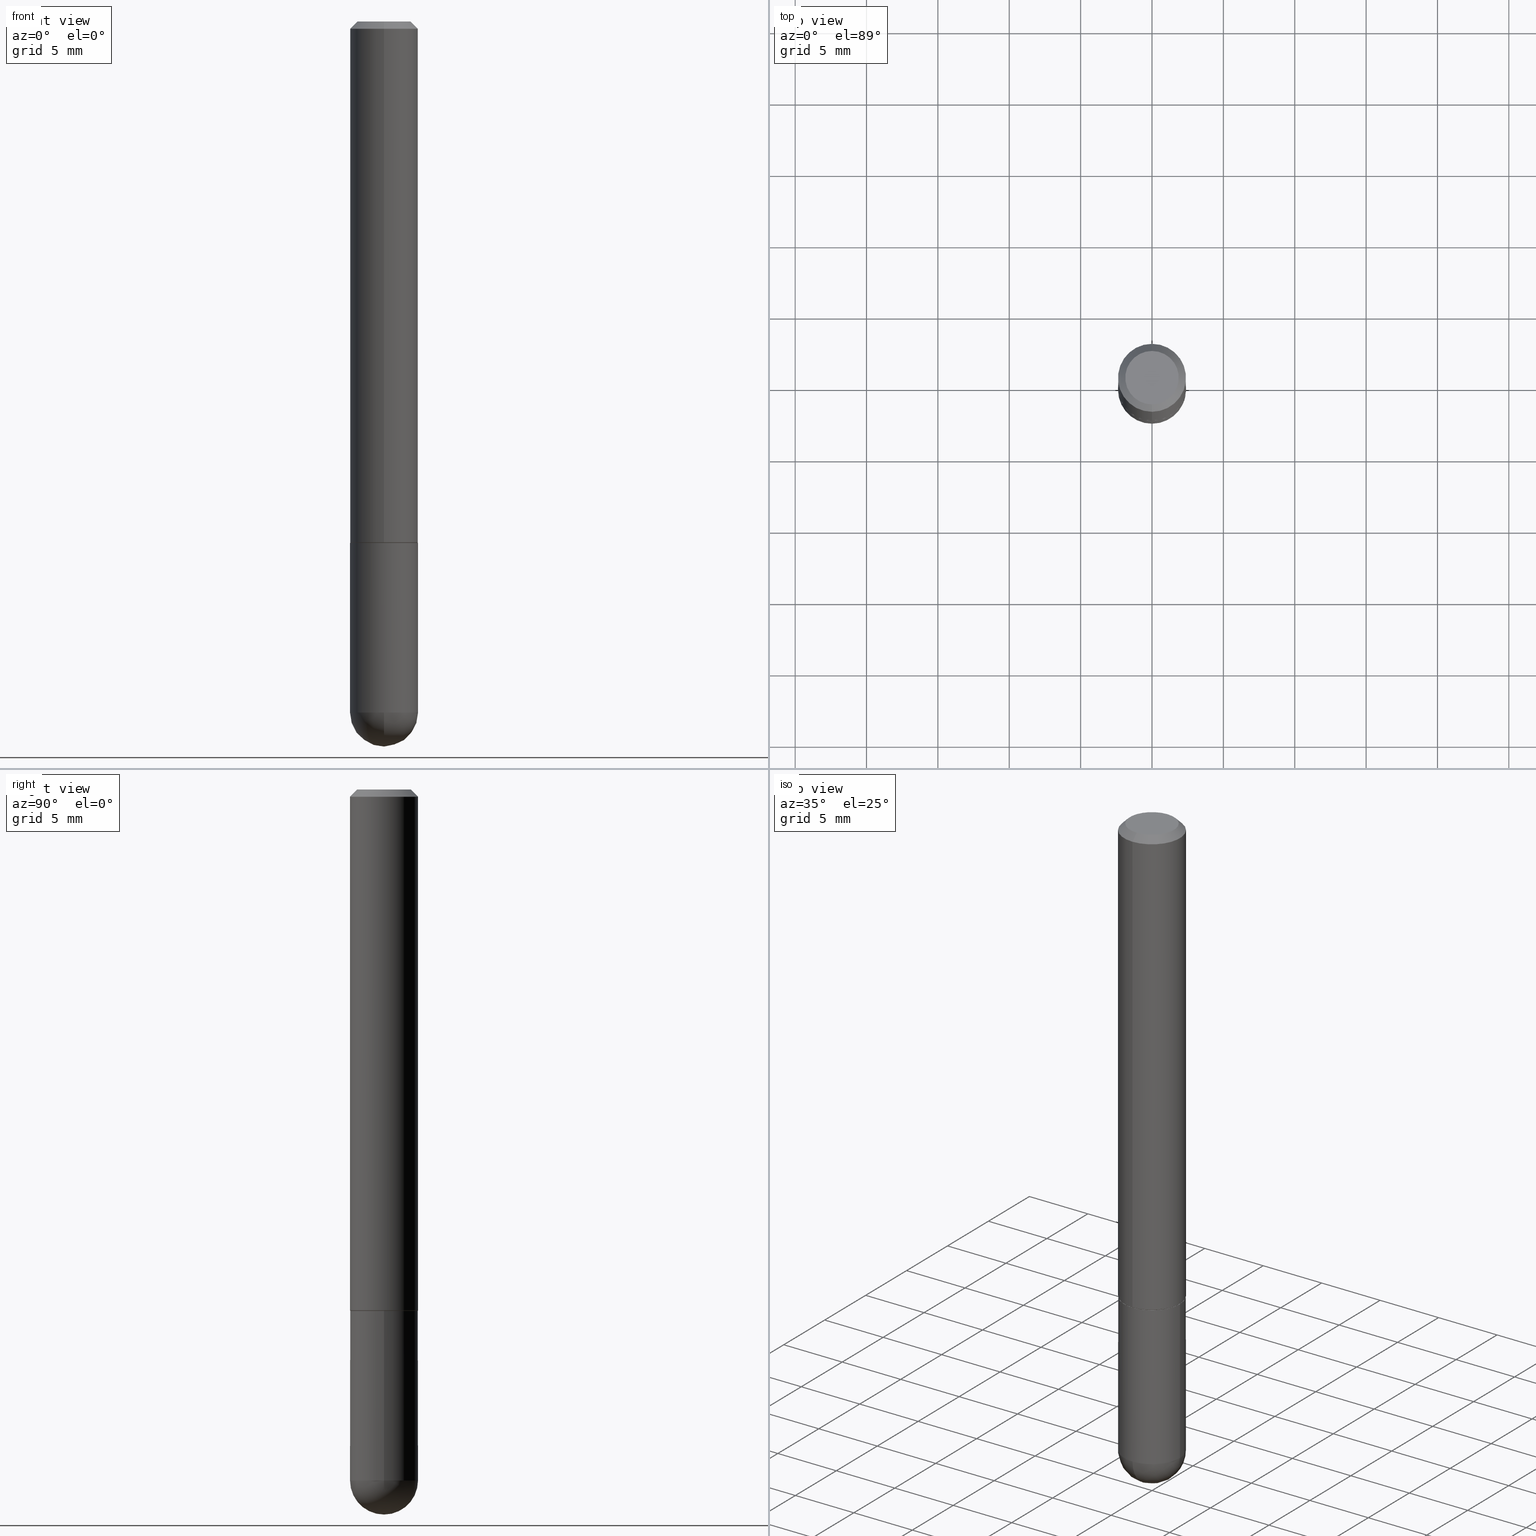
[diagram: canonical four-view strip — front | top / right | iso, engineering-drawing reading convention]
A machine part, canonical four-view strip (front | top / right | iso — engineering-drawing reading convention). The complete STEP part file that produces these views, byte-faithful:
ISO-10303-21;
HEADER;
FILE_DESCRIPTION (( 'STEP AP203' ),
    '1' );
FILE_NAME ('34631.STEP',
    '2024-02-21T18:10:36',
    ( '' ),
    ( '' ),
    'SwSTEP 2.0',
    'SolidWorks 2023',
    '' );
FILE_SCHEMA (( 'CONFIG_CONTROL_DESIGN' ));
ENDSEC;

DATA;
#1 = DIRECTION ( 'NONE',  ( -2.446041994382864894E-29, 3.490660500720152417E-15, 1.000000000000000000 ) ) ;
#2 = EDGE_CURVE ( 'NONE', #334, #113, #152, .T. ) ;
#3 = FACE_OUTER_BOUND ( 'NONE', #370, .T. ) ;
#4 = APPROVAL ( #167, 'UNSPECIFIED' ) ;
#5 = FACE_OUTER_BOUND ( 'NONE', #193, .T. ) ;
#6 = DATE_AND_TIME ( #138, #405 ) ;
#7 = CONICAL_SURFACE ( 'NONE', #273, 0.09274999999999999911, 0.7853981633976446775 ) ;
#8 = ORIENTED_EDGE ( 'NONE', *, *, #400, .T. ) ;
#9 = EDGE_CURVE ( 'NONE', #236, #334, #296, .T. ) ;
#10 = ORIENTED_EDGE ( 'NONE', *, *, #400, .F. ) ;
#11 = CARTESIAN_POINT ( 'NONE',  ( 6.661338147751125611E-16, 0.09374999999999515665, -1.437000000000000277 ) ) ;
#12 = DESIGN_CONTEXT ( 'detailed design', #61, 'design' ) ;
#13 = AXIS2_PLACEMENT_3D ( 'NONE', #44, #72, #200 ) ;
#14 = ORIENTED_EDGE ( 'NONE', *, *, #356, .F. ) ;
#15 = LENGTH_MEASURE_WITH_UNIT ( LENGTH_MEASURE( 0.02539999999999999897 ), #403 );
#16 = CARTESIAN_POINT ( 'NONE',  ( -6.661338147750496494E-16, -0.09375000000000702216, -1.906249999999999556 ) ) ;
#17 = ORIENTED_EDGE ( 'NONE', *, *, #231, .T. ) ;
#18 = ADVANCED_FACE ( 'NONE', ( #5 ), #230, .F. ) ;
#19 = AXIS2_PLACEMENT_3D ( 'NONE', #250, #1, #191 ) ;
#20 = ORIENTED_EDGE ( 'NONE', *, *, #249, .T. ) ;
#21 = DIRECTION ( 'NONE',  ( -2.445468806185136597E-29, 3.491481338843145583E-15, 1.000000000000000000 ) ) ;
#22 = CC_DESIGN_PERSON_AND_ORGANIZATION_ASSIGNMENT ( #156, #68, ( #203 ) ) ;
#23 = ORIENTED_EDGE ( 'NONE', *, *, #174, .T. ) ;
#24 = APPLICATION_CONTEXT ( 'configuration controlled 3d designs of mechanical parts and assemblies' ) ;
#25 = DATE_TIME_ROLE ( 'creation_date' ) ;
#26 = VERTEX_POINT ( 'NONE', #41 ) ;
#27 = DIRECTION ( 'NONE',  ( -2.446041994382864894E-29, 3.490660500720152022E-15, 1.000000000000000000 ) ) ;
#28 = AXIS2_PLACEMENT_3D ( 'NONE', #219, #311, #62 ) ;
#29 = DATE_AND_TIME ( #409, #51 ) ;
#30 = EDGE_CURVE ( 'NONE', #185, #366, #121, .T. ) ;
#31 = CARTESIAN_POINT ( 'NONE',  ( -0.09375000000000001388, -5.172059418938000719E-15, -1.437999999999999723 ) ) ;
#32 = PERSON_AND_ORGANIZATION_ROLE ( 'creator' ) ;
#33 = SPHERICAL_SURFACE ( 'NONE', #75, 0.09375000000000026368 ) ;
#34 = ORIENTED_EDGE ( 'NONE', *, *, #206, .T. ) ;
#35 = APPROVAL_STATUS ( 'not_yet_approved' ) ;
#36 = DIRECTION ( 'NONE',  ( -2.445468806185136597E-29, 3.491481338843145583E-15, 1.000000000000000000 ) ) ;
#37 = VECTOR ( 'NONE', #27, 39.37007874015748143 ) ;
#38 = DIRECTION ( 'NONE',  ( -2.446041994382864894E-29, 3.490660500720152417E-15, 1.000000000000000000 ) ) ;
#39 = DIRECTION ( 'NONE',  ( -4.937700262165517552E-15, -0.7071067811866839081, 0.7071067811864111263 ) ) ;
#40 = DIRECTION ( 'NONE',  ( 6.982962677686265133E-15, 1.000000000000000000, -2.913971193241872483E-15 ) ) ;
#41 = CARTESIAN_POINT ( 'NONE',  ( 5.848231242562252906E-16, 0.07375000000000007938, -3.087188986208872011E-16 ) ) ;
#42 = AXIS2_PLACEMENT_3D ( 'NONE', #281, #314, #124 ) ;
#43 = FACE_OUTER_BOUND ( 'NONE', #178, .T. ) ;
#44 = CARTESIAN_POINT ( 'NONE',  ( 5.149934974793626827E-16, 0.07375000000000007938, -2.830775552744993900E-16 ) ) ;
#45 = PERSON_AND_ORGANIZATION ( #98, #131 ) ;
#46 = AXIS2_PLACEMENT_3D ( 'NONE', #80, #21, #84 ) ;
#47 = CYLINDRICAL_SURFACE ( 'NONE', #368, 0.09375000000000009714 ) ;
#48 = DIRECTION ( 'NONE',  ( 1.000000000000000000, -6.982962677686265922E-15, 4.883557194083112340E-29 ) ) ;
#49 = ADVANCED_FACE ( 'NONE', ( #3 ), #322, .T. ) ;
#50 = EDGE_LOOP ( 'NONE', ( #139, #8 ) ) ;
#51 = LOCAL_TIME ( 13, 10, 36.00000000000000000, #383 ) ;
#52 = DIRECTION ( 'NONE',  ( -2.446041994382864894E-29, 3.490660500720152417E-15, 1.000000000000000000 ) ) ;
#53 = ORIENTED_EDGE ( 'NONE', *, *, #168, .F. ) ;
#54 = CARTESIAN_POINT ( 'NONE',  ( 3.517408387922559130E-29, -5.019569800035578091E-15, -1.437999999999999723 ) ) ;
#55 = EDGE_CURVE ( 'NONE', #118, #215, #142, .T. ) ;
#56 = DIRECTION ( 'NONE',  ( -6.982962677686265922E-15, -1.000000000000000000, 2.945388672414299892E-15 ) ) ;
#57 = AXIS2_PLACEMENT_3D ( 'NONE', #317, #36, #161 ) ;
#58 = CARTESIAN_POINT ( 'NONE',  ( 4.563826426436916486E-29, -7.451404513955337857E-15, -2.000000000000000444 ) ) ;
#59 = DIRECTION ( 'NONE',  ( -6.982962677686265922E-15, -1.000000000000000000, 3.490660500720152811E-15 ) ) ;
#60 = CARTESIAN_POINT ( 'NONE',  ( 6.625811010963292147E-16, 0.09274999999999498923, -1.438000000000000167 ) ) ;
#61 = APPLICATION_CONTEXT ( 'configuration controlled 3d designs of mechanical parts and assemblies' ) ;
#62 = DIRECTION ( 'NONE',  ( -6.982962677686265922E-15, -1.000000000000000000, 3.490660500720152417E-15 ) ) ;
#63 = APPROVAL_PERSON_ORGANIZATION ( #235, #4, #134 ) ;
#64 = FACE_OUTER_BOUND ( 'NONE', #50, .T. ) ;
#65 = AXIS2_PLACEMENT_3D ( 'NONE', #181, #331, #339 ) ;
#66 = CC_DESIGN_PERSON_AND_ORGANIZATION_ASSIGNMENT ( #218, #310, ( #203 ) ) ;
#67 = DIRECTION ( 'NONE',  ( -6.982962677686265922E-15, -1.000000000000000000, 2.945388672414299892E-15 ) ) ;
#68 = PERSON_AND_ORGANIZATION_ROLE ( 'design_supplier' ) ;
#69 = CARTESIAN_POINT ( 'NONE',  ( 3.517408387922559130E-29, -5.019569800035578091E-15, -1.437999999999999723 ) ) ;
#70 = VECTOR ( 'NONE', #87, 39.37007874015748143 ) ;
#71 = CARTESIAN_POINT ( 'NONE',  ( 4.892083988765733782E-31, -6.981321001440310454E-17, -0.02000000000000001776 ) ) ;
#72 = DIRECTION ( 'NONE',  ( 2.446041994382864894E-29, -3.490660500720152022E-15, -1.000000000000000000 ) ) ;
#73 = COORDINATED_UNIVERSAL_TIME_OFFSET ( 5, 0, .BEHIND. ) ;
#74 = DIRECTION ( 'NONE',  ( -6.982962677686265922E-15, -1.000000000000000000, 2.945388672414299892E-15 ) ) ;
#75 = AXIS2_PLACEMENT_3D ( 'NONE', #159, #282, #345 ) ;
#76 = ADVANCED_FACE ( 'NONE', ( #257 ), #135, .T. ) ;
#77 = ORIENTED_EDGE ( 'NONE', *, *, #237, .T. ) ;
#78 = DIRECTION ( 'NONE',  ( -2.446041994382864894E-29, 3.490660500720152417E-15, 1.000000000000000000 ) ) ;
#79 = EDGE_LOOP ( 'NONE', ( #212, #302 ) ) ;
#80 = CARTESIAN_POINT ( 'NONE',  ( 0.000000000000000000, 0.000000000000000000, 0.000000000000000000 ) ) ;
#81 = FACE_OUTER_BOUND ( 'NONE', #391, .T. ) ;
#82 = CC_DESIGN_DATE_AND_TIME_ASSIGNMENT ( #6, #325, ( #172 ) ) ;
#83 = ORIENTED_EDGE ( 'NONE', *, *, #312, .T. ) ;
#84 = DIRECTION ( 'NONE',  ( 1.000000000000000000, -6.982962677686266711E-15, 4.876176775795935793E-29 ) ) ;
#85 = CARTESIAN_POINT ( 'NONE',  ( 3.516584143294225538E-29, -5.020750165256442268E-15, -1.437999999999999723 ) ) ;
#86 = VECTOR ( 'NONE', #378, 39.37007874015748143 ) ;
#87 = DIRECTION ( 'NONE',  ( -2.445468806185136877E-29, 3.491481338843145188E-15, 1.000000000000000000 ) ) ;
#88 = ADVANCED_FACE ( 'NONE', ( #333 ), #47, .T. ) ;
#89 = DIRECTION ( 'NONE',  ( -6.982962677686265922E-15, -1.000000000000000000, 3.505871591869137304E-15 ) ) ;
#90 = AXIS2_PLACEMENT_3D ( 'NONE', #129, #327, #74 ) ;
#91 = SECURITY_CLASSIFICATION_LEVEL ( 'unclassified' ) ;
#92 = APPROVAL_DATE_TIME ( #377, #298 ) ;
#93 = LINE ( 'NONE', #256, #213 ) ;
#94 = CARTESIAN_POINT ( 'NONE',  ( -6.476697883553659911E-16, -0.09275000000000502287, -1.437999999999999501 ) ) ;
#95 = AXIS2_PLACEMENT_3D ( 'NONE', #85, #148, #299 ) ;
#96 = EDGE_CURVE ( 'NONE', #113, #207, #192, .T. ) ;
#97 = DIRECTION ( 'NONE',  ( -2.446041994382864894E-29, 3.490660500720152022E-15, 1.000000000000000000 ) ) ;
#98 = PERSON ( 'UNSPECIFIED', 'UNSPECIFIED', 'UNSPECIFIED', ('UNSPECIFIED'), ('UNSPECIFIED'), ('UNSPECIFIED') ) ;
#99 = PERSON_AND_ORGANIZATION ( #98, #131 ) ;
#100 = SHAPE_DEFINITION_REPRESENTATION ( #337, #194 ) ;
#101 = DIRECTION ( 'NONE',  ( 2.446041994382864894E-29, -3.490660500720152417E-15, -1.000000000000000000 ) ) ;
#102 = AXIS2_PLACEMENT_3D ( 'NONE', #214, #78, #267 ) ;
#103 = EDGE_CURVE ( 'NONE', #108, #185, #170, .T. ) ;
#104 = FACE_OUTER_BOUND ( 'NONE', #79, .T. ) ;
#105 = APPROVAL_PERSON_ORGANIZATION ( #122, #298, #160 ) ;
#106 = CARTESIAN_POINT ( 'NONE',  ( 0.09374999999999998612, -6.492845984746181359E-15, -1.906250000000000000 ) ) ;
#107 = MANIFOLD_SOLID_BREP ( 'Body-Move/Copy2[2]', #388 ) ;
#108 = VERTEX_POINT ( 'NONE', #58 ) ;
#109 = ORIENTED_EDGE ( 'NONE', *, *, #137, .F. ) ;
#110 = EDGE_LOOP ( 'NONE', ( #297, #242, #402, #372 ) ) ;
#111 = CARTESIAN_POINT ( 'NONE',  ( -0.09374999999999998612, -5.172059418938000719E-15, -1.906250000000000000 ) ) ;
#112 = AXIS2_PLACEMENT_3D ( 'NONE', #144, #146, #208 ) ;
#113 = VERTEX_POINT ( 'NONE', #11 ) ;
#114 = CARTESIAN_POINT ( 'NONE',  ( -0.09374999999999998612, 6.661338147750938256E-16, -4.611501647113973295E-30 ) ) ;
#115 = ORIENTED_EDGE ( 'NONE', *, *, #312, .F. ) ;
#116 = ADVANCED_FACE ( 'NONE', ( #81 ), #7, .T. ) ;
#117 = CARTESIAN_POINT ( 'NONE',  ( -6.431716872910805909E-16, -0.09375000000000006939, -0.01999999999999968817 ) ) ;
#118 = VERTEX_POINT ( 'NONE', #306 ) ;
#119 = MECHANICAL_CONTEXT ( 'NONE', #24, 'mechanical' ) ;
#120 = DIRECTION ( 'NONE',  ( 2.446041994382864894E-29, -3.490660500720152417E-15, -1.000000000000000000 ) ) ;
#121 = CIRCLE ( 'NONE', #347, 0.09374999999999998612 ) ;
#122 = PERSON_AND_ORGANIZATION ( #98, #131 ) ;
#123 = FACE_OUTER_BOUND ( 'NONE', #295, .T. ) ;
#124 = DIRECTION ( 'NONE',  ( 1.000000000000000000, -6.982962677686263555E-15, 0.000000000000000000 ) ) ;
#125 = VECTOR ( 'NONE', #39, 39.37007874015748143 ) ;
#126 = CARTESIAN_POINT ( 'NONE',  ( 3.517408387922559130E-29, -5.019569800035578091E-15, -1.437999999999999723 ) ) ;
#127 = DIRECTION ( 'NONE',  ( -4.851104656540958753E-15, -0.7071067811865492381, -0.7071067811865457964 ) ) ;
#128 = CARTESIAN_POINT ( 'NONE',  ( 3.517408387922559130E-29, -5.019569800035578091E-15, -1.437999999999999723 ) ) ;
#129 = CARTESIAN_POINT ( 'NONE',  ( 3.517408387922559130E-29, -5.019569800035578091E-15, -1.437999999999999723 ) ) ;
#130 = ADVANCED_FACE ( 'NONE', ( #179 ), #371, .T. ) ;
#131 = ORGANIZATION ( 'UNSPECIFIED', 'UNSPECIFIED', '' ) ;
#132 = AXIS2_PLACEMENT_3D ( 'NONE', #225, #196, #286 ) ;
#133 = DIRECTION ( 'NONE',  ( -2.445468806185136597E-29, 3.491481338843145583E-15, 1.000000000000000000 ) ) ;
#134 = APPROVAL_ROLE ( '' ) ;
#135 = CONICAL_SURFACE ( 'NONE', #369, 0.09375000000000001388, 0.7853981633974472798 ) ;
#136 = DIRECTION ( 'NONE',  ( 6.982962677686265133E-15, 1.000000000000000000, 0.000000000000000000 ) ) ;
#137 = EDGE_CURVE ( 'NONE', #392, #412, #291, .T. ) ;
#138 = CALENDAR_DATE ( 2024, 21, 2 ) ;
#139 = ORIENTED_EDGE ( 'NONE', *, *, #408, .T. ) ;
#140 =( CONVERSION_BASED_UNIT ( 'INCH', #15 ) LENGTH_UNIT ( ) NAMED_UNIT ( #304 ) );
#141 = ORIENTED_EDGE ( 'NONE', *, *, #165, .T. ) ;
#142 = CIRCLE ( 'NONE', #336, 0.09375000000000001388 ) ;
#143 = DIRECTION ( 'NONE',  ( 1.000000000000000000, -6.982962677686261189E-15, 0.000000000000000000 ) ) ;
#144 = CARTESIAN_POINT ( 'NONE',  ( 4.661674911790416638E-29, -6.655636302169745441E-15, -1.906250000000000000 ) ) ;
#145 = ORIENTED_EDGE ( 'NONE', *, *, #344, .F. ) ;
#146 = DIRECTION ( 'NONE',  ( -2.445468806185136597E-29, 3.491481338843145583E-15, 1.000000000000000000 ) ) ;
#147 = ORIENTED_EDGE ( 'NONE', *, *, #2, .F. ) ;
#148 = DIRECTION ( 'NONE',  ( -2.445468806185136597E-29, 3.491481338843145583E-15, 1.000000000000000000 ) ) ;
#149 = DIRECTION ( 'NONE',  ( -2.446041994382864894E-29, 3.490660500720152417E-15, 1.000000000000000000 ) ) ;
#150 = ORIENTED_EDGE ( 'NONE', *, *, #168, .T. ) ;
#151 = COORDINATED_UNIVERSAL_TIME_OFFSET ( 5, 0, .BEHIND. ) ;
#152 = LINE ( 'NONE', #406, #265 ) ;
#153 = APPROVAL_ROLE ( '' ) ;
#154 = CC_DESIGN_SECURITY_CLASSIFICATION ( #172, ( #203 ) ) ;
#155 = CARTESIAN_POINT ( 'NONE',  ( 0.09375000000000001388, -5.675402916289529772E-15, -1.437999999999999723 ) ) ;
#156 = PERSON_AND_ORGANIZATION ( #98, #131 ) ;
#157 = DIRECTION ( 'NONE',  ( 2.438088387897960049E-29, -3.491481338843145188E-15, -1.000000000000000000 ) ) ;
#158 = CALENDAR_DATE ( 2024, 21, 2 ) ;
#159 = CARTESIAN_POINT ( 'NONE',  ( 4.330555133876530390E-29, -7.129818670309794948E-15, -1.906250000000000000 ) ) ;
#160 = APPROVAL_ROLE ( '' ) ;
#161 = DIRECTION ( 'NONE',  ( 1.000000000000000000, -6.982962677686263555E-15, 0.000000000000000000 ) ) ;
#162 = CIRCLE ( 'NONE', #95, 0.09375000000000001388 ) ;
#163 = DIRECTION ( 'NONE',  ( -6.982962677686265922E-15, -1.000000000000000000, 3.505871591869137304E-15 ) ) ;
#164 = CYLINDRICAL_SURFACE ( 'NONE', #132, 0.09374999999999998612 ) ;
#165 = EDGE_CURVE ( 'NONE', #26, #175, #349, .T. ) ;
#166 = LOCAL_TIME ( 13, 10, 36.00000000000000000, #316 ) ;
#167 = APPROVAL_STATUS ( 'not_yet_approved' ) ;
#168 = EDGE_CURVE ( 'NONE', #412, #276, #176, .T. ) ;
#169 = DIRECTION ( 'NONE',  ( -2.445468806185136597E-29, 3.491481338843145583E-15, 1.000000000000000000 ) ) ;
#170 = CIRCLE ( 'NONE', #65, 0.09375000000000026368 ) ;
#171 = ORIENTED_EDGE ( 'NONE', *, *, #344, .T. ) ;
#172 = SECURITY_CLASSIFICATION ( '', '', #91 ) ;
#173 = ORIENTED_EDGE ( 'NONE', *, *, #30, .T. ) ;
#174 = EDGE_CURVE ( 'NONE', #207, #113, #187, .T. ) ;
#175 = VERTEX_POINT ( 'NONE', #394 ) ;
#176 = LINE ( 'NONE', #114, #70 ) ;
#177 = PRODUCT_RELATED_PRODUCT_CATEGORY ( 'detail', '', ( #221 ) ) ;
#178 = EDGE_LOOP ( 'NONE', ( #14, #189, #240, #109 ) ) ;
#179 = FACE_OUTER_BOUND ( 'NONE', #238, .T. ) ;
#180 = CIRCLE ( 'NONE', #332, 0.09274999999999999911 ) ;
#181 = CARTESIAN_POINT ( 'NONE',  ( 4.330555133876530390E-29, -7.129818670309794948E-15, -1.906250000000000000 ) ) ;
#182 = ORIENTED_EDGE ( 'NONE', *, *, #408, .F. ) ;
#183 = APPROVAL_DATE_TIME ( #255, #211 ) ;
#184 = DIRECTION ( 'NONE',  ( -2.446041994382864894E-29, 3.490660500720152417E-15, 1.000000000000000000 ) ) ;
#185 = VERTEX_POINT ( 'NONE', #16 ) ;
#186 = CARTESIAN_POINT ( 'NONE',  ( 4.892083988765733782E-31, -6.981321001440310454E-17, -0.02000000000000001776 ) ) ;
#187 = CIRCLE ( 'NONE', #102, 0.09375000000000019429 ) ;
#188 = DIRECTION ( 'NONE',  ( 4.937700262164542520E-15, 0.7071067811865443531, -0.7071067811865506814 ) ) ;
#189 = ORIENTED_EDGE ( 'NONE', *, *, #103, .T. ) ;
#190 = DIRECTION ( 'NONE',  ( 1.000000000000000000, 0.000000000000000000, 0.000000000000000000 ) ) ;
#191 = DIRECTION ( 'NONE',  ( -6.982962677686265922E-15, -1.000000000000000000, 3.490660500720152811E-15 ) ) ;
#192 = CIRCLE ( 'NONE', #401, 0.09375000000000019429 ) ;
#193 = EDGE_LOOP ( 'NONE', ( #141, #204 ) ) ;
#194 = ADVANCED_BREP_SHAPE_REPRESENTATION ( '34631', ( #234, #107, #354 ), #374 ) ;
#195 = APPROVAL_STATUS ( 'not_yet_approved' ) ;
#196 = DIRECTION ( 'NONE',  ( -2.445468806185136597E-29, 3.491481338843145583E-15, 1.000000000000000000 ) ) ;
#197 = CARTESIAN_POINT ( 'NONE',  ( 6.546527510330879972E-16, 0.09374999999999994449, -0.02000000000000034736 ) ) ;
#198 = EDGE_CURVE ( 'NONE', #366, #224, #269, .T. ) ;
#199 = AXIS2_PLACEMENT_3D ( 'NONE', #258, #133, #143 ) ;
#200 = DIRECTION ( 'NONE',  ( 6.982962677686265922E-15, 1.000000000000000000, -3.490660500720152022E-15 ) ) ;
#201 = DIRECTION ( 'NONE',  ( -2.446041994382864894E-29, 3.490660500720152022E-15, 1.000000000000000000 ) ) ;
#202 = ADVANCED_FACE ( 'NONE', ( #123 ), #350, .T. ) ;
#203 = PRODUCT_DEFINITION_FORMATION_WITH_SPECIFIED_SOURCE ( 'ANY', '', #221, .NOT_KNOWN. ) ;
#204 = ORIENTED_EDGE ( 'NONE', *, *, #241, .T. ) ;
#205 = DIRECTION ( 'NONE',  ( -6.982962677686266711E-15, -1.000000000000000000, 2.913971193241874850E-15 ) ) ;
#206 = EDGE_CURVE ( 'NONE', #26, #215, #93, .T. ) ;
#207 = VERTEX_POINT ( 'NONE', #279 ) ;
#208 = DIRECTION ( 'NONE',  ( 1.000000000000000000, -6.982962677686263555E-15, 0.000000000000000000 ) ) ;
#209 = ORIENTED_EDGE ( 'NONE', *, *, #241, .F. ) ;
#210 = ORIENTED_EDGE ( 'NONE', *, *, #96, .F. ) ;
#211 = APPROVAL ( #195, 'UNSPECIFIED' ) ;
#212 = ORIENTED_EDGE ( 'NONE', *, *, #9, .F. ) ;
#213 = VECTOR ( 'NONE', #188, 39.37007874015748143 ) ;
#214 = CARTESIAN_POINT ( 'NONE',  ( 3.514962345928176845E-29, -5.016079139534859416E-15, -1.437000000000000055 ) ) ;
#215 = VERTEX_POINT ( 'NONE', #197 ) ;
#216 = CLOSED_SHELL ( 'NONE', ( #328, #393, #307, #263, #130 ) ) ;
#217 = DIRECTION ( 'NONE',  ( 6.982962677686265922E-15, 1.000000000000000000, -3.505871591869137304E-15 ) ) ;
#218 = PERSON_AND_ORGANIZATION ( #98, #131 ) ;
#219 = CARTESIAN_POINT ( 'NONE',  ( 1.254396052353086315E-45, -1.790104488092790553E-31, -5.128268669277567764E-17 ) ) ;
#220 = PRODUCT_DEFINITION ( 'UNKNOWN', '', #203, #12 ) ;
#221 = PRODUCT ( '34631', '34631', '', ( #119 ) ) ;
#222 = LOCAL_TIME ( 13, 10, 36.00000000000000000, #151 ) ;
#223 = LINE ( 'NONE', #384, #270 ) ;
#224 = VERTEX_POINT ( 'NONE', #155 ) ;
#225 = CARTESIAN_POINT ( 'NONE',  ( 0.000000000000000000, 0.000000000000000000, 0.000000000000000000 ) ) ;
#226 = PERSON_AND_ORGANIZATION_ROLE ( 'design_owner' ) ;
#227 = DIRECTION ( 'NONE',  ( -2.446041994382864894E-29, 3.490660500720152417E-15, 1.000000000000000000 ) ) ;
#228 = DIRECTION ( 'NONE',  ( -1.000000000000000000, 6.982962677686265133E-15, -4.883557194083112901E-29 ) ) ;
#229 = LOCAL_TIME ( 13, 10, 36.00000000000000000, #248 ) ;
#230 = PLANE ( 'NONE',  #13 ) ;
#231 = EDGE_CURVE ( 'NONE', #334, #236, #180, .T. ) ;
#232 = CARTESIAN_POINT ( 'NONE',  ( 6.546527510331332580E-16, 0.09374999999999322764, -1.906250000000000222 ) ) ;
#233 = CONICAL_SURFACE ( 'NONE', #319, 0.09375000000000001388, 0.7853981633974472798 ) ;
#234 = MANIFOLD_SOLID_BREP ( 'Body-Move/Copy2[1]', #216 ) ;
#235 = PERSON_AND_ORGANIZATION ( #98, #131 ) ;
#236 = VERTEX_POINT ( 'NONE', #94 ) ;
#237 = EDGE_CURVE ( 'NONE', #113, #215, #386, .T. ) ;
#238 = EDGE_LOOP ( 'NONE', ( #53, #300, #173, #284, #10 ) ) ;
#239 = APPROVAL_PERSON_ORGANIZATION ( #385, #211, #153 ) ;
#240 = ORIENTED_EDGE ( 'NONE', *, *, #341, .F. ) ;
#241 = EDGE_CURVE ( 'NONE', #175, #26, #390, .T. ) ;
#242 = ORIENTED_EDGE ( 'NONE', *, *, #356, .T. ) ;
#243 = AXIS2_PLACEMENT_3D ( 'NONE', #126, #318, #288 ) ;
#244 = CARTESIAN_POINT ( 'NONE',  ( 3.514962345928176845E-29, -5.016079139534859416E-15, -1.437000000000000055 ) ) ;
#245 = CC_DESIGN_APPROVAL ( #298, ( #203 ) ) ;
#246 = DIRECTION ( 'NONE',  ( -1.000000000000000000, 6.982962677686265922E-15, -4.876176775795935793E-29 ) ) ;
#247 = ORIENTED_EDGE ( 'NONE', *, *, #55, .T. ) ;
#248 = COORDINATED_UNIVERSAL_TIME_OFFSET ( 5, 0, .BEHIND. ) ;
#249 = EDGE_CURVE ( 'NONE', #215, #118, #411, .T. ) ;
#250 = CARTESIAN_POINT ( 'NONE',  ( 0.000000000000000000, 0.000000000000000000, 0.000000000000000000 ) ) ;
#251 = CALENDAR_DATE ( 2024, 21, 2 ) ;
#252 = FACE_OUTER_BOUND ( 'NONE', #305, .T. ) ;
#253 = AXIS2_PLACEMENT_3D ( 'NONE', #410, #157, #246 ) ;
#254 = LINE ( 'NONE', #320, #125 ) ;
#255 = DATE_AND_TIME ( #251, #166 ) ;
#256 = CARTESIAN_POINT ( 'NONE',  ( 6.546527510330879972E-16, 0.09374999999999994449, -0.02000000000000034736 ) ) ;
#257 = FACE_OUTER_BOUND ( 'NONE', #338, .T. ) ;
#258 = CARTESIAN_POINT ( 'NONE',  ( 3.516584143294225538E-29, -5.020750165256442268E-15, -1.437999999999999723 ) ) ;
#259 = AXIS2_PLACEMENT_3D ( 'NONE', #321, #48, #136 ) ;
#260 = CARTESIAN_POINT ( 'NONE',  ( 4.661674911790416638E-29, -6.655636302169745441E-15, -1.906250000000000000 ) ) ;
#261 = PLANE ( 'NONE',  #326 ) ;
#262 = AXIS2_PLACEMENT_3D ( 'NONE', #186, #308, #89 ) ;
#263 = ADVANCED_FACE ( 'NONE', ( #64 ), #352, .F. ) ;
#264 = ORIENTED_EDGE ( 'NONE', *, *, #237, .F. ) ;
#265 = VECTOR ( 'NONE', #351, 39.37007874015748143 ) ;
#266 = EDGE_LOOP ( 'NONE', ( #264, #268, #359, #272 ) ) ;
#267 = DIRECTION ( 'NONE',  ( -6.982962677686266711E-15, -1.000000000000000000, 2.913971193241874850E-15 ) ) ;
#268 = ORIENTED_EDGE ( 'NONE', *, *, #96, .T. ) ;
#269 = LINE ( 'NONE', #381, #86 ) ;
#270 = VECTOR ( 'NONE', #97, 39.37007874015748143 ) ;
#271 = ORIENTED_EDGE ( 'NONE', *, *, #55, .F. ) ;
#272 = ORIENTED_EDGE ( 'NONE', *, *, #249, .F. ) ;
#273 = AXIS2_PLACEMENT_3D ( 'NONE', #54, #149, #56 ) ;
#274 = DIRECTION ( 'NONE',  ( -2.446041994382864894E-29, 3.490660500720152417E-15, 1.000000000000000000 ) ) ;
#275 = CALENDAR_DATE ( 2024, 21, 2 ) ;
#276 = VERTEX_POINT ( 'NONE', #31 ) ;
#277 = ADVANCED_FACE ( 'NONE', ( #252 ), #233, .T. ) ;
#278 = CC_DESIGN_APPROVAL ( #4, ( #172 ) ) ;
#279 = CARTESIAN_POINT ( 'NONE',  ( -6.546527510330536817E-16, -0.09375000000000521805, -1.436999999999999833 ) ) ;
#280 = DATE_AND_TIME ( #158, #229 ) ;
#281 = CARTESIAN_POINT ( 'NONE',  ( 4.661674911790416638E-29, -6.655636302169745441E-15, -1.906250000000000000 ) ) ;
#282 = DIRECTION ( 'NONE',  ( -1.000000000000000000, 6.982962677686265133E-15, -4.883557194083112901E-29 ) ) ;
#283 = EDGE_CURVE ( 'NONE', #366, #392, #363, .T. ) ;
#284 = ORIENTED_EDGE ( 'NONE', *, *, #198, .T. ) ;
#285 = LINE ( 'NONE', #117, #301 ) ;
#286 = DIRECTION ( 'NONE',  ( 1.000000000000000000, -6.982962677686266711E-15, 4.876176775795935793E-29 ) ) ;
#287 = APPROVAL_DATE_TIME ( #29, #4 ) ;
#288 = DIRECTION ( 'NONE',  ( -6.982962677686265922E-15, -1.000000000000000000, 2.945388672414299892E-15 ) ) ;
#289 = SPHERICAL_SURFACE ( 'NONE', #294, 0.09375000000000026368 ) ;
#290 = CC_DESIGN_PERSON_AND_ORGANIZATION_ASSIGNMENT ( #313, #226, ( #221 ) ) ;
#291 = CIRCLE ( 'NONE', #112, 0.09374999999999998612 ) ;
#292 = DIRECTION ( 'NONE',  ( 1.000000000000000000, -6.982962677686263555E-15, 0.000000000000000000 ) ) ;
#293 = ORIENTED_EDGE ( 'NONE', *, *, #198, .F. ) ;
#294 = AXIS2_PLACEMENT_3D ( 'NONE', #324, #228, #40 ) ;
#295 = EDGE_LOOP ( 'NONE', ( #23, #77, #271, #362 ) ) ;
#296 = CIRCLE ( 'NONE', #90, 0.09274999999999999911 ) ;
#297 = ORIENTED_EDGE ( 'NONE', *, *, #103, .F. ) ;
#298 = APPROVAL ( #35, 'UNSPECIFIED' ) ;
#299 = DIRECTION ( 'NONE',  ( 1.000000000000000000, -6.982962677686261189E-15, 0.000000000000000000 ) ) ;
#300 = ORIENTED_EDGE ( 'NONE', *, *, #341, .T. ) ;
#301 = VECTOR ( 'NONE', #127, 39.37007874015748143 ) ;
#302 = ORIENTED_EDGE ( 'NONE', *, *, #231, .F. ) ;
#303 = APPLICATION_PROTOCOL_DEFINITION ( 'international standard', 'config_control_design', 1994, #24 ) ;
#304 = DIMENSIONAL_EXPONENTS ( 1.000000000000000000, 0.000000000000000000, 0.000000000000000000, 0.000000000000000000, 0.000000000000000000, 0.000000000000000000, 0.000000000000000000 ) ;
#305 = EDGE_LOOP ( 'NONE', ( #209, #171, #247, #358 ) ) ;
#306 = CARTESIAN_POINT ( 'NONE',  ( -6.431716872910805909E-16, -0.09375000000000006939, -0.01999999999999968817 ) ) ;
#307 = ADVANCED_FACE ( 'NONE', ( #376 ), #33, .T. ) ;
#308 = DIRECTION ( 'NONE',  ( -2.446041994382864894E-29, 3.490660500720152417E-15, 1.000000000000000000 ) ) ;
#309 = CIRCLE ( 'NONE', #57, 0.09374999999999998612 ) ;
#310 = PERSON_AND_ORGANIZATION_ROLE ( 'creator' ) ;
#311 = DIRECTION ( 'NONE',  ( -2.446041994382864894E-29, 3.490660500720152417E-15, 1.000000000000000000 ) ) ;
#312 = EDGE_CURVE ( 'NONE', #236, #207, #254, .T. ) ;
#313 = PERSON_AND_ORGANIZATION ( #98, #131 ) ;
#314 = DIRECTION ( 'NONE',  ( -2.445468806185136597E-29, 3.491481338843145583E-15, 1.000000000000000000 ) ) ;
#315 = ORIENTED_EDGE ( 'NONE', *, *, #9, .T. ) ;
#316 = COORDINATED_UNIVERSAL_TIME_OFFSET ( 5, 0, .BEHIND. ) ;
#317 = CARTESIAN_POINT ( 'NONE',  ( 4.661674911790416638E-29, -6.655636302169745441E-15, -1.906250000000000000 ) ) ;
#318 = DIRECTION ( 'NONE',  ( -2.446041994382864894E-29, 3.490660500720152417E-15, 1.000000000000000000 ) ) ;
#319 = AXIS2_PLACEMENT_3D ( 'NONE', #407, #120, #217 ) ;
#320 = CARTESIAN_POINT ( 'NONE',  ( -6.476697883553659911E-16, -0.09275000000000502287, -1.437999999999999501 ) ) ;
#321 = CARTESIAN_POINT ( 'NONE',  ( 4.330555133876530390E-29, -7.129818670309794948E-15, -1.906250000000000000 ) ) ;
#322 = CONICAL_SURFACE ( 'NONE', #243, 0.09274999999999999911, 0.7853981633976446775 ) ;
#323 = EDGE_CURVE ( 'NONE', #207, #118, #223, .T. ) ;
#324 = CARTESIAN_POINT ( 'NONE',  ( 4.330555133876530390E-29, -7.129818670309794948E-15, -1.906250000000000000 ) ) ;
#325 = DATE_TIME_ROLE ( 'classification_date' ) ;
#326 = AXIS2_PLACEMENT_3D ( 'NONE', #128, #201, #389 ) ;
#327 = DIRECTION ( 'NONE',  ( -2.446041994382864894E-29, 3.490660500720152417E-15, 1.000000000000000000 ) ) ;
#328 = ADVANCED_FACE ( 'NONE', ( #342 ), #164, .T. ) ;
#329 = PERSON_AND_ORGANIZATION_ROLE ( 'classification_officer' ) ;
#330 = ORIENTED_EDGE ( 'NONE', *, *, #2, .T. ) ;
#331 = DIRECTION ( 'NONE',  ( -1.000000000000000000, 7.105427357601001070E-15, -4.926315508542082329E-29 ) ) ;
#332 = AXIS2_PLACEMENT_3D ( 'NONE', #69, #227, #67 ) ;
#333 = FACE_OUTER_BOUND ( 'NONE', #266, .T. ) ;
#334 = VERTEX_POINT ( 'NONE', #60 ) ;
#335 = CC_DESIGN_PERSON_AND_ORGANIZATION_ASSIGNMENT ( #99, #32, ( #220 ) ) ;
#336 = AXIS2_PLACEMENT_3D ( 'NONE', #71, #38, #163 ) ;
#337 = PRODUCT_DEFINITION_SHAPE ( 'NONE', 'NONE',  #220 ) ;
#338 = EDGE_LOOP ( 'NONE', ( #145, #375, #34, #20 ) ) ;
#339 = DIRECTION ( 'NONE',  ( -7.105427357601001070E-15, -1.000000000000000000, 0.000000000000000000 ) ) ;
#340 = ORIENTED_EDGE ( 'NONE', *, *, #283, .T. ) ;
#341 = EDGE_CURVE ( 'NONE', #412, #185, #309, .T. ) ;
#342 = FACE_OUTER_BOUND ( 'NONE', #399, .T. ) ;
#343 = CARTESIAN_POINT ( 'NONE',  ( 6.661338147750944173E-16, 0.09375000000000009714, -3.272494219425146588E-16 ) ) ;
#344 = EDGE_CURVE ( 'NONE', #175, #118, #285, .T. ) ;
#345 = DIRECTION ( 'NONE',  ( 6.982962677686265133E-15, 1.000000000000000000, -2.913971193241872483E-15 ) ) ;
#346 = CC_DESIGN_PERSON_AND_ORGANIZATION_ASSIGNMENT ( #45, #329, ( #172 ) ) ;
#347 = AXIS2_PLACEMENT_3D ( 'NONE', #260, #169, #292 ) ;
#348 = APPLICATION_PROTOCOL_DEFINITION ( 'international standard', 'config_control_design', 1994, #61 ) ;
#349 = CIRCLE ( 'NONE', #357, 0.07375000000000007938 ) ;
#350 = CYLINDRICAL_SURFACE ( 'NONE', #19, 0.09375000000000009714 ) ;
#351 = DIRECTION ( 'NONE',  ( 5.024295867789048466E-15, 0.7071067811866887931, 0.7071067811864062413 ) ) ;
#352 = PLANE ( 'NONE',  #253 ) ;
#353 = DIRECTION ( 'NONE',  ( 6.982962677686265922E-15, 1.000000000000000000, -3.505871591869137304E-15 ) ) ;
#354 = AXIS2_PLACEMENT_3D ( 'NONE', #373, #360, #190 ) ;
#355 = UNCERTAINTY_MEASURE_WITH_UNIT (LENGTH_MEASURE( 1.000000000000000082E-05 ), #140, 'distance_accuracy_value', 'NONE');
#356 = EDGE_CURVE ( 'NONE', #108, #392, #397, .T. ) ;
#357 = AXIS2_PLACEMENT_3D ( 'NONE', #361, #274, #404 ) ;
#358 = ORIENTED_EDGE ( 'NONE', *, *, #206, .F. ) ;
#359 = ORIENTED_EDGE ( 'NONE', *, *, #323, .T. ) ;
#360 = DIRECTION ( 'NONE',  ( 0.000000000000000000, 0.000000000000000000, 1.000000000000000000 ) ) ;
#361 = CARTESIAN_POINT ( 'NONE',  ( 1.254396052353086315E-45, -1.790104488092790553E-31, -5.128268669277567764E-17 ) ) ;
#362 = ORIENTED_EDGE ( 'NONE', *, *, #323, .F. ) ;
#363 = CIRCLE ( 'NONE', #42, 0.09374999999999998612 ) ;
#364 = ADVANCED_FACE ( 'NONE', ( #104 ), #261, .F. ) ;
#365 = CIRCLE ( 'NONE', #199, 0.09375000000000001388 ) ;
#366 = VERTEX_POINT ( 'NONE', #106 ) ;
#367 =( NAMED_UNIT ( * ) PLANE_ANGLE_UNIT ( ) SI_UNIT ( $, .RADIAN. ) );
#368 = AXIS2_PLACEMENT_3D ( 'NONE', #398, #184, #59 ) ;
#369 = AXIS2_PLACEMENT_3D ( 'NONE', #387, #101, #353 ) ;
#370 = EDGE_LOOP ( 'NONE', ( #315, #330, #380, #115 ) ) ;
#371 = CYLINDRICAL_SURFACE ( 'NONE', #46, 0.09374999999999998612 ) ;
#372 = ORIENTED_EDGE ( 'NONE', *, *, #30, .F. ) ;
#373 = CARTESIAN_POINT ( 'NONE',  ( 0.000000000000000000, 0.000000000000000000, 0.000000000000000000 ) ) ;
#374 =( GEOMETRIC_REPRESENTATION_CONTEXT ( 3 ) GLOBAL_UNCERTAINTY_ASSIGNED_CONTEXT ( ( #355 ) ) GLOBAL_UNIT_ASSIGNED_CONTEXT ( ( #140, #367, #396 ) ) REPRESENTATION_CONTEXT ( 'NONE', 'WORKASPACE' ) );
#375 = ORIENTED_EDGE ( 'NONE', *, *, #165, .F. ) ;
#376 = FACE_OUTER_BOUND ( 'NONE', #110, .T. ) ;
#377 = DATE_AND_TIME ( #275, #222 ) ;
#378 = DIRECTION ( 'NONE',  ( -2.445468806185136877E-29, 3.491481338843145188E-15, 1.000000000000000000 ) ) ;
#379 = CC_DESIGN_DATE_AND_TIME_ASSIGNMENT ( #280, #25, ( #220 ) ) ;
#380 = ORIENTED_EDGE ( 'NONE', *, *, #174, .F. ) ;
#381 = CARTESIAN_POINT ( 'NONE',  ( 0.09374999999999998612, -6.546527510330874055E-16, 4.571415727308689105E-30 ) ) ;
#382 = CC_DESIGN_APPROVAL ( #211, ( #220 ) ) ;
#383 = COORDINATED_UNIVERSAL_TIME_OFFSET ( 5, 0, .BEHIND. ) ;
#384 = CARTESIAN_POINT ( 'NONE',  ( -6.546527510330880958E-16, -0.09375000000000009714, 3.272494219425146588E-16 ) ) ;
#385 = PERSON_AND_ORGANIZATION ( #98, #131 ) ;
#386 = LINE ( 'NONE', #343, #37 ) ;
#387 = CARTESIAN_POINT ( 'NONE',  ( 4.892083988765733782E-31, -6.981321001440310454E-17, -0.02000000000000001776 ) ) ;
#388 = CLOSED_SHELL ( 'NONE', ( #49, #202, #277, #76, #88, #116, #364, #18 ) ) ;
#389 = DIRECTION ( 'NONE',  ( -6.982962677686265922E-15, -1.000000000000000000, 3.490660500720152022E-15 ) ) ;
#390 = CIRCLE ( 'NONE', #28, 0.07375000000000007938 ) ;
#391 = EDGE_LOOP ( 'NONE', ( #147, #17, #83, #210 ) ) ;
#392 = VERTEX_POINT ( 'NONE', #232 ) ;
#393 = ADVANCED_FACE ( 'NONE', ( #43 ), #289, .T. ) ;
#394 = CARTESIAN_POINT ( 'NONE',  ( -5.745667073133657526E-16, -0.07375000000000007938, 2.061535252353357842E-16 ) ) ;
#395 = ORIENTED_EDGE ( 'NONE', *, *, #137, .T. ) ;
#396 =( NAMED_UNIT ( * ) SI_UNIT ( $, .STERADIAN. ) SOLID_ANGLE_UNIT ( ) );
#397 = CIRCLE ( 'NONE', #259, 0.09375000000000026368 ) ;
#398 = CARTESIAN_POINT ( 'NONE',  ( 0.000000000000000000, 0.000000000000000000, 0.000000000000000000 ) ) ;
#399 = EDGE_LOOP ( 'NONE', ( #395, #150, #182, #293, #340 ) ) ;
#400 = EDGE_CURVE ( 'NONE', #276, #224, #365, .T. ) ;
#401 = AXIS2_PLACEMENT_3D ( 'NONE', #244, #52, #205 ) ;
#402 = ORIENTED_EDGE ( 'NONE', *, *, #283, .F. ) ;
#403 =( LENGTH_UNIT ( ) NAMED_UNIT ( * ) SI_UNIT ( $, .METRE. ) );
#404 = DIRECTION ( 'NONE',  ( -6.982962677686265922E-15, -1.000000000000000000, 3.490660500720152417E-15 ) ) ;
#405 = LOCAL_TIME ( 13, 10, 36.00000000000000000, #73 ) ;
#406 = CARTESIAN_POINT ( 'NONE',  ( 6.590283874175280204E-16, 0.09274999999999498923, -1.438000000000000167 ) ) ;
#407 = CARTESIAN_POINT ( 'NONE',  ( 4.892083988765733782E-31, -6.981321001440310454E-17, -0.02000000000000001776 ) ) ;
#408 = EDGE_CURVE ( 'NONE', #224, #276, #162, .T. ) ;
#409 = CALENDAR_DATE ( 2024, 21, 2 ) ;
#410 = CARTESIAN_POINT ( 'NONE',  ( 6.546527510331227070E-16, 0.09374999999999499012, -1.438000000000000167 ) ) ;
#411 = CIRCLE ( 'NONE', #262, 0.09375000000000001388 ) ;
#412 = VERTEX_POINT ( 'NONE', #111 ) ;
ENDSEC;
END-ISO-10303-21;
